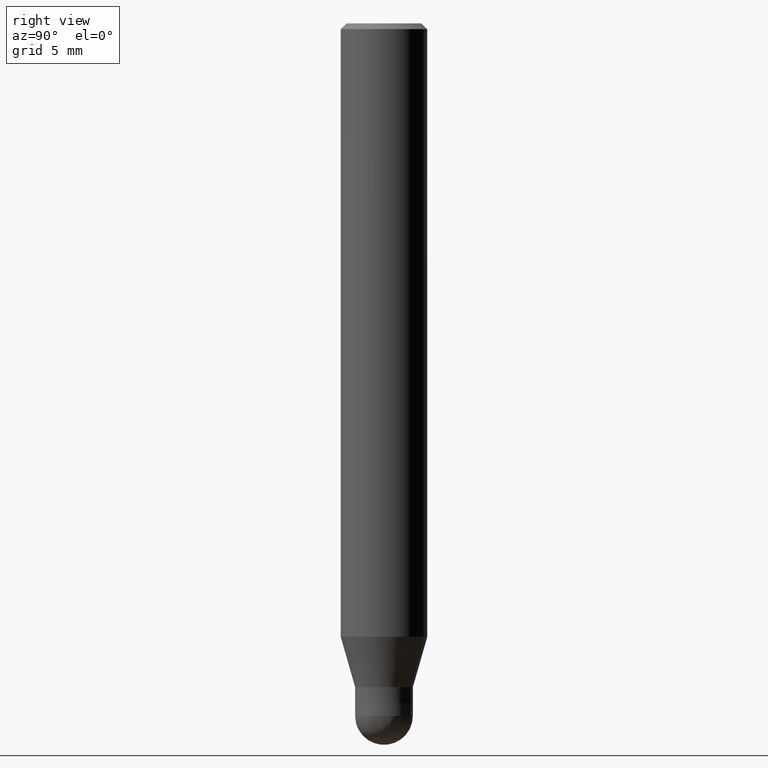
[diagram: clean part render]
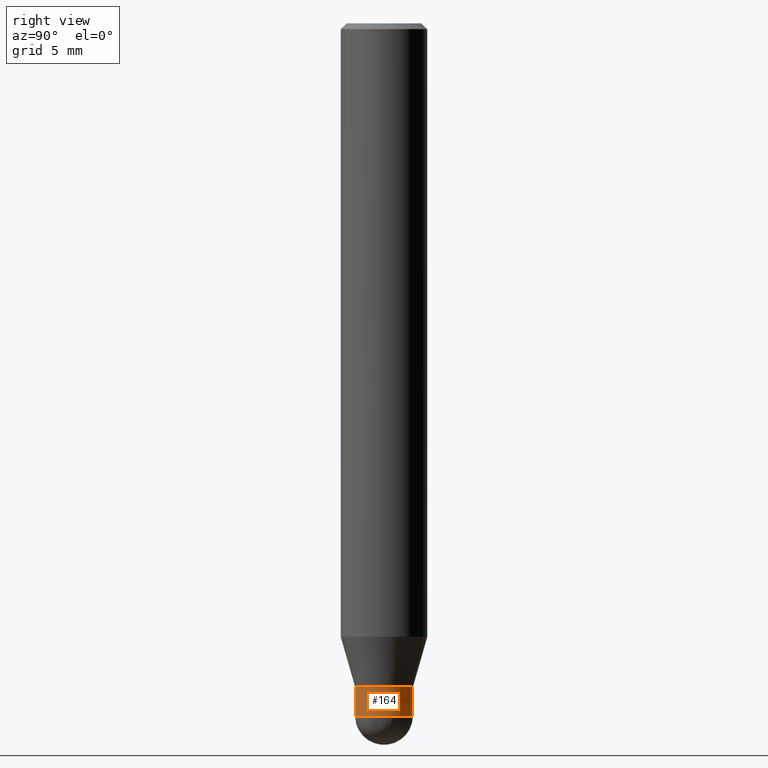
[diagram: same view with one face highlighted and labeled with its STEP entity id]
A machine part, right view. The second image highlights one B-rep face of the part: STEP entity #164.
In plain terms, the highlighted conical surface has half-angle 0.003 deg.
Its self-contained STEP definition (entity closure, byte-faithful):
#88=EDGE_CURVE('',#130,#144,#214,.T.);
#96=EDGE_CURVE('',#106,#130,#222,.T.);
#106=VERTEX_POINT('',#233);
#130=VERTEX_POINT('',#261);
#144=VERTEX_POINT('',#278);
#160=VERTEX_POINT('',#295);
#164=ADVANCED_FACE('',(#299),#300,.T.);
#172=EDGE_CURVE('',#160,#106,#308,.T.);
#184=EDGE_CURVE('',#160,#144,#323,.T.);
#214=LINE('',#347,#348);
#222=CIRCLE('',#359,2.0);
#233=CARTESIAN_POINT('',(0.0,2.0,-48.0));
#261=CARTESIAN_POINT('',(2.44921270764476E-016,-2.0,-48.0));
#278=CARTESIAN_POINT('',(2.44909024700937E-016,-1.9999,-46.0));
#295=CARTESIAN_POINT('',(0.0,1.9999,-46.0));
#299=FACE_OUTER_BOUND('',#450,.T.);
#300=CONICAL_SURFACE('',#451,1.99995,4.99999999583278E-005);
#308=LINE('',#462,#463);
#323=CIRCLE('',#482,1.9999);
#347=CARTESIAN_POINT('',(2.44915147732706E-016,-1.99995,-47.0));
#348=VECTOR('',#499,1.0);
#359=AXIS2_PLACEMENT_3D('',#501,#502,#503);
#450=EDGE_LOOP('',(#593,#594,#595,#596));
#451=AXIS2_PLACEMENT_3D('',#597,#598,#599);
#462=CARTESIAN_POINT('',(-2.44915147732707E-016,1.99995,-47.0));
#463=VECTOR('',#606,1.0);
#482=AXIS2_PLACEMENT_3D('',#633,#634,#635);
#499=DIRECTION('',(-6.12303176145742E-021,4.99999999374945E-005,0.99999999875));
#501=CARTESIAN_POINT('',(0.0,0.0,-48.0));
#502=DIRECTION('',(0.0,0.0,-1.0));
#503=DIRECTION('',(0.0,1.0,0.0));
#593=ORIENTED_EDGE('',*,*,#172,.F.);
#594=ORIENTED_EDGE('',*,*,#184,.T.);
#595=ORIENTED_EDGE('',*,*,#88,.F.);
#596=ORIENTED_EDGE('',*,*,#96,.F.);
#597=CARTESIAN_POINT('',(0.0,0.0,-47.0));
#598=DIRECTION('',(0.0,-0.0,-1.0));
#599=DIRECTION('',(0.0,1.0,0.0));
#606=DIRECTION('',(-6.12303176145743E-021,4.99999999374945E-005,-0.99999999875));
#633=CARTESIAN_POINT('',(0.0,0.0,-46.0));
#634=DIRECTION('',(0.0,0.0,-1.0));
#635=DIRECTION('',(0.0,1.0,0.0));